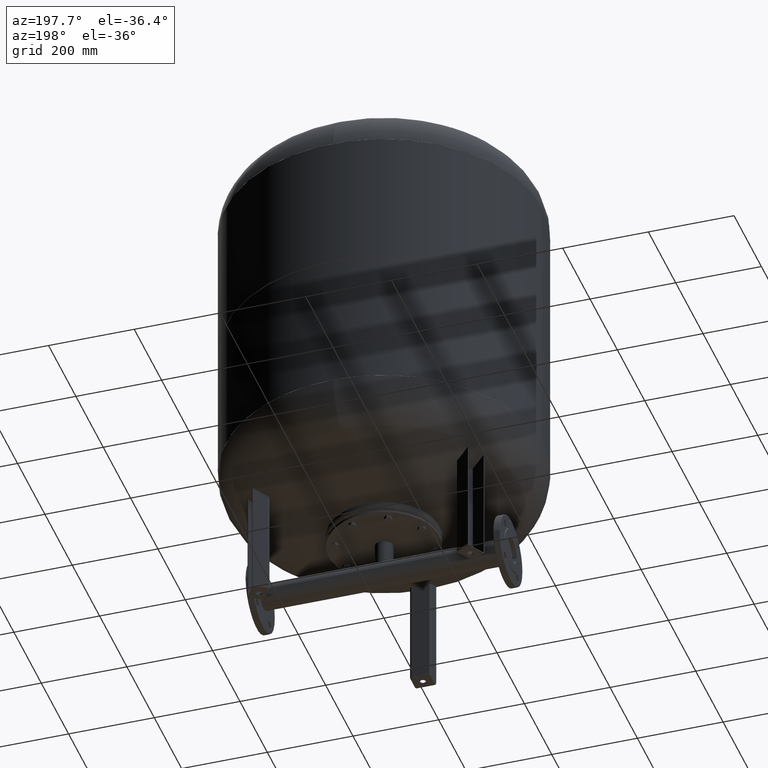
[diagram: clean part render]
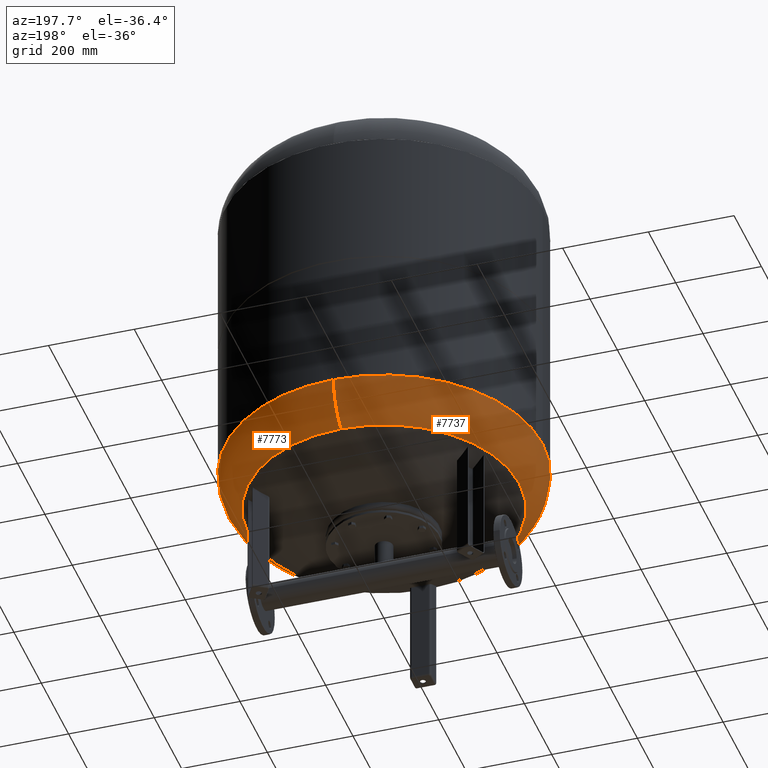
[diagram: same view with one multi-face feature highlighted, each face labeled with its STEP entity id]
A machine part, auxiliary view. The highlighted faces form ONE feature: a constant-radius fillet chain: 2 tangent blend faces with common blend radius 115.5 mm. The faces share edges in the B-rep.
Their STEP definitions:
[1] entity #7773 (Torus):
#7659=CARTESIAN_POINT('',(370.0,1.062956E-014,374.793879611869560));
#7660=VERTEX_POINT('',#7659);
#7667=CARTESIAN_POINT('',(-4.531044E-014,369.999999999999940,374.793879611869610));
#7668=VERTEX_POINT('',#7667);
#7669=CARTESIAN_POINT('',(0.0,-3.468087E-014,374.793879611869560));
#7670=DIRECTION('',(0.0,0.0,1.0));
#7671=DIRECTION('',(-1.0,0.0,0.0));
#7672=AXIS2_PLACEMENT_3D('',#7669,#7670,#7671);
#7673=CIRCLE('',#7672,370.0);
#7674=EDGE_CURVE('',#7660,#7668,#7673,.T.);
#7691=CARTESIAN_POINT('',(0.0,-370.000000000000060,374.793879611869500));
#7692=VERTEX_POINT('',#7691);
#7693=CARTESIAN_POINT('',(0.0,-315.931034482758610,276.985505725079410));
#7694=VERTEX_POINT('',#7693);
#7695=CARTESIAN_POINT('',(0.0,-254.500000000000060,374.793879611869500));
#7696=DIRECTION('',(1.0,0.0,0.0));
#7697=DIRECTION('',(0.0,-1.0,0.0));
#7698=AXIS2_PLACEMENT_3D('',#7695,#7696,#7697);
#7699=CIRCLE('',#7698,115.500000000000000);
#7700=EDGE_CURVE('',#7692,#7694,#7699,.T.);
#7710=CARTESIAN_POINT('',(-3.868912E-014,315.931034482758610,276.985505725079630));
#7711=VERTEX_POINT('',#7710);
#7712=CARTESIAN_POINT('',(-3.116623E-014,254.500000000000000,374.793879611869610));
#7713=DIRECTION('',(-1.0,0.0,0.0));
#7714=DIRECTION('',(0.0,1.0,0.0));
#7715=AXIS2_PLACEMENT_3D('',#7712,#7713,#7714);
#7716=CIRCLE('',#7715,115.500000000000000);
#7717=EDGE_CURVE('',#7668,#7711,#7716,.T.);
#7745=CARTESIAN_POINT('',(0.0,-1.671377E-014,276.985505725079520));
#7746=DIRECTION('',(0.0,0.0,1.0));
#7747=DIRECTION('',(-1.0,0.0,0.0));
#7748=AXIS2_PLACEMENT_3D('',#7745,#7746,#7747);
#7749=CIRCLE('',#7748,315.931034482758610);
#7750=EDGE_CURVE('',#7694,#7711,#7749,.T.);
#7755=CARTESIAN_POINT('',(0.0,-3.468087E-014,374.793879611869560));
#7756=DIRECTION('',(0.0,-1.836970E-016,1.0));
#7757=DIRECTION('',(0.0,-1.0,0.0));
#7758=AXIS2_PLACEMENT_3D('',#7755,#7756,#7757);
#7759=TOROIDAL_SURFACE('',#7758,254.500000000000030,115.500000000000000);
#7760=ORIENTED_EDGE('',*,*,#7700,.T.);
#7761=ORIENTED_EDGE('',*,*,#7750,.T.);
#7762=ORIENTED_EDGE('',*,*,#7717,.F.);
#7763=ORIENTED_EDGE('',*,*,#7674,.F.);
#7764=CARTESIAN_POINT('',(0.0,-3.468087E-014,374.793879611869560));
#7765=DIRECTION('',(0.0,0.0,1.0));
#7766=DIRECTION('',(-1.0,0.0,0.0));
#7767=AXIS2_PLACEMENT_3D('',#7764,#7765,#7766);
#7768=CIRCLE('',#7767,370.0);
#7769=EDGE_CURVE('',#7692,#7660,#7768,.T.);
#7770=ORIENTED_EDGE('',*,*,#7769,.F.);
#7771=EDGE_LOOP('',(#7760,#7761,#7762,#7763,#7770));
#7772=FACE_OUTER_BOUND('',#7771,.T.);
#7773=ADVANCED_FACE('',(#7772),#7759,.T.);
[2] entity #7737 (Torus):
#7642=CARTESIAN_POINT('',(-370.0,-3.468087E-014,374.793879611869560));
#7643=VERTEX_POINT('',#7642);
#7667=CARTESIAN_POINT('',(-4.531044E-014,369.999999999999940,374.793879611869610));
#7668=VERTEX_POINT('',#7667);
#7676=CARTESIAN_POINT('',(0.0,-3.468087E-014,374.793879611869560));
#7677=DIRECTION('',(0.0,0.0,1.0));
#7678=DIRECTION('',(-1.0,0.0,0.0));
#7679=AXIS2_PLACEMENT_3D('',#7676,#7677,#7678);
#7680=CIRCLE('',#7679,370.0);
#7681=EDGE_CURVE('',#7668,#7643,#7680,.T.);
#7686=CARTESIAN_POINT('',(0.0,-3.468087E-014,374.793879611869560));
#7687=DIRECTION('',(0.0,-1.836970E-016,1.0));
#7688=DIRECTION('',(0.0,-1.0,0.0));
#7689=AXIS2_PLACEMENT_3D('',#7686,#7687,#7688);
#7690=TOROIDAL_SURFACE('',#7689,254.500000000000030,115.500000000000000);
#7691=CARTESIAN_POINT('',(0.0,-370.000000000000060,374.793879611869500));
#7692=VERTEX_POINT('',#7691);
#7693=CARTESIAN_POINT('',(0.0,-315.931034482758610,276.985505725079410));
#7694=VERTEX_POINT('',#7693);
#7695=CARTESIAN_POINT('',(0.0,-254.500000000000060,374.793879611869500));
#7696=DIRECTION('',(1.0,0.0,0.0));
#7697=DIRECTION('',(0.0,-1.0,0.0));
#7698=AXIS2_PLACEMENT_3D('',#7695,#7696,#7697);
#7699=CIRCLE('',#7698,115.500000000000000);
#7700=EDGE_CURVE('',#7692,#7694,#7699,.T.);
#7701=ORIENTED_EDGE('',*,*,#7700,.F.);
#7702=CARTESIAN_POINT('',(0.0,-3.468087E-014,374.793879611869560));
#7703=DIRECTION('',(0.0,0.0,1.0));
#7704=DIRECTION('',(-1.0,0.0,0.0));
#7705=AXIS2_PLACEMENT_3D('',#7702,#7703,#7704);
#7706=CIRCLE('',#7705,370.0);
#7707=EDGE_CURVE('',#7643,#7692,#7706,.T.);
#7708=ORIENTED_EDGE('',*,*,#7707,.F.);
#7709=ORIENTED_EDGE('',*,*,#7681,.F.);
#7710=CARTESIAN_POINT('',(-3.868912E-014,315.931034482758610,276.985505725079630));
#7711=VERTEX_POINT('',#7710);
#7712=CARTESIAN_POINT('',(-3.116623E-014,254.500000000000000,374.793879611869610));
#7713=DIRECTION('',(-1.0,0.0,0.0));
#7714=DIRECTION('',(0.0,1.0,0.0));
#7715=AXIS2_PLACEMENT_3D('',#7712,#7713,#7714);
#7716=CIRCLE('',#7715,115.500000000000000);
#7717=EDGE_CURVE('',#7668,#7711,#7716,.T.);
#7718=ORIENTED_EDGE('',*,*,#7717,.T.);
#7719=CARTESIAN_POINT('',(-315.931034482758610,-1.671377E-014,276.985505725079520));
#7720=VERTEX_POINT('',#7719);
#7721=CARTESIAN_POINT('',(0.0,-1.671377E-014,276.985505725079520));
#7722=DIRECTION('',(0.0,0.0,1.0));
#7723=DIRECTION('',(-1.0,0.0,0.0));
#7724=AXIS2_PLACEMENT_3D('',#7721,#7722,#7723);
#7725=CIRCLE('',#7724,315.931034482758610);
#7726=EDGE_CURVE('',#7711,#7720,#7725,.T.);
#7727=ORIENTED_EDGE('',*,*,#7726,.T.);
#7728=CARTESIAN_POINT('',(0.0,-1.671377E-014,276.985505725079520));
#7729=DIRECTION('',(0.0,0.0,1.0));
#7730=DIRECTION('',(-1.0,0.0,0.0));
#7731=AXIS2_PLACEMENT_3D('',#7728,#7729,#7730);
#7732=CIRCLE('',#7731,315.931034482758610);
#7733=EDGE_CURVE('',#7720,#7694,#7732,.T.);
#7734=ORIENTED_EDGE('',*,*,#7733,.T.);
#7735=EDGE_LOOP('',(#7701,#7708,#7709,#7718,#7727,#7734));
#7736=FACE_OUTER_BOUND('',#7735,.T.);
#7737=ADVANCED_FACE('',(#7736),#7690,.T.);